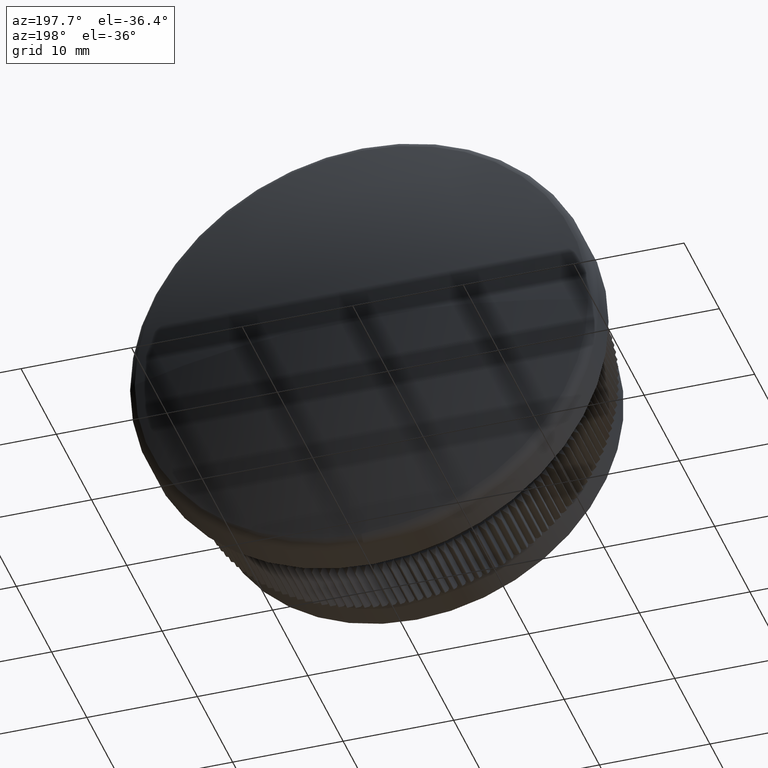
[diagram: clean part render]
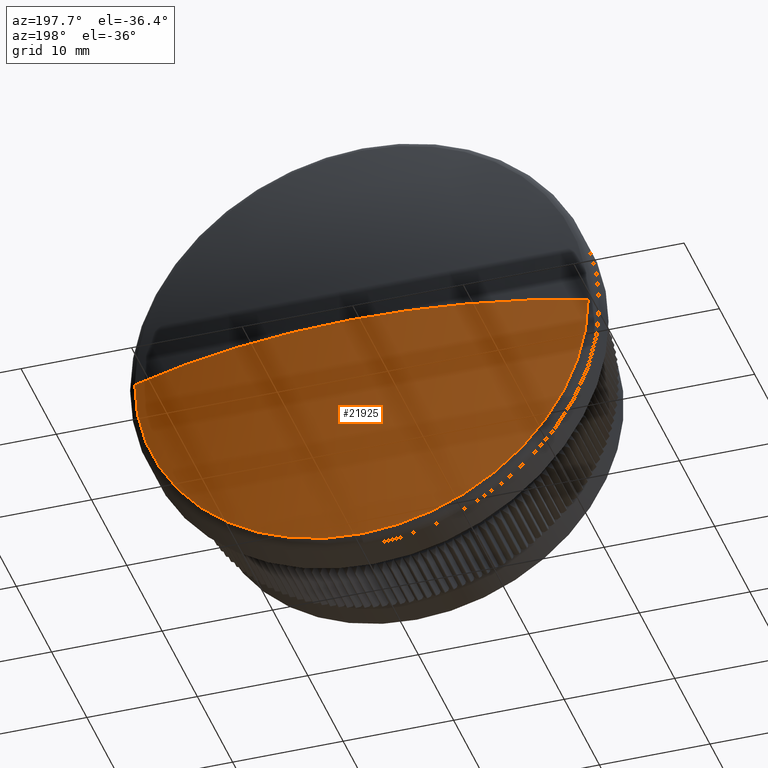
[diagram: same view with one face highlighted and labeled with its STEP entity id]
A machine part, auxiliary view. The second image highlights one B-rep face of the part: STEP entity #21925.
In plain terms, the highlighted spherical surface has radius 64.2222 mm.
Its self-contained STEP definition (entity closure, byte-faithful):
#74 = CARTESIAN_POINT ( 'NONE',  ( 0.0000000000000000000, 16.13370289891058500, 0.0000000000000000000 ) ) ;
#437 = SPHERICAL_SURFACE ( 'NONE', #12327, 64.22222222222215700 ) ;
#1376 = AXIS2_PLACEMENT_3D ( 'NONE', #20008, #5794, #9577 ) ;
#1455 = DIRECTION ( 'NONE',  ( 0.0000000000000000000, 0.0000000000000000000, -1.000000000000000000 ) ) ;
#2058 = ORIENTED_EDGE ( 'NONE', *, *, #12226, .T. ) ;
#2474 = DIRECTION ( 'NONE',  ( 1.000000000000000000, 0.0000000000000000000, 0.0000000000000000000 ) ) ;
#5794 = DIRECTION ( 'NONE',  ( 1.224646799147353200E-016, -0.0000000000000000000, 1.000000000000000000 ) ) ;
#5826 = VERTEX_POINT ( 'NONE', #18334 ) ;
#6579 = ORIENTED_EDGE ( 'NONE', *, *, #8845, .T. ) ;
#7765 = EDGE_CURVE ( 'NONE', #44792, #13353, #19851, .T. ) ;
#8845 = EDGE_CURVE ( 'NONE', #13353, #5826, #42479, .T. ) ;
#8897 = EDGE_LOOP ( 'NONE', ( #12791, #2058, #43405, #6579 ) ) ;
#9577 = DIRECTION ( 'NONE',  ( 1.000000000000000000, 0.0000000000000000000, -1.224646799147353200E-016 ) ) ;
#12226 = EDGE_CURVE ( 'NONE', #40151, #44792, #36865, .T. ) ;
#12327 = AXIS2_PLACEMENT_3D ( 'NONE', #16682, #26981, #2474 ) ;
#12791 = ORIENTED_EDGE ( 'NONE', *, *, #16574, .F. ) ;
#13346 = CARTESIAN_POINT ( 'NONE',  ( 0.0000000000000000000, 16.13370289891058500, 0.0000000000000000000 ) ) ;
#13353 = VERTEX_POINT ( 'NONE', #22797 ) ;
#13995 = DIRECTION ( 'NONE',  ( 0.0000000000000000000, 0.0000000000000000000, -1.000000000000000000 ) ) ;
#16574 = EDGE_CURVE ( 'NONE', #40151, #5826, #25841, .T. ) ;
#16682 = CARTESIAN_POINT ( 'NONE',  ( 0.0000000000000000000, -44.72222222222214300, 0.0000000000000000000 ) ) ;
#18334 = CARTESIAN_POINT ( 'NONE',  ( -20.51950790861158000, 16.13370289891058100, 2.512914968035997800E-015 ) ) ;
#19851 = CIRCLE ( 'NONE', #24568, 20.51950790861159700 ) ;
#20008 = CARTESIAN_POINT ( 'NONE',  ( 0.0000000000000000000, -44.72222222222214300, 0.0000000000000000000 ) ) ;
#20261 = CARTESIAN_POINT ( 'NONE',  ( 20.51950790861158000, 16.13370289891058100, 0.0000000000000000000 ) ) ;
#21925 = ADVANCED_FACE ( 'NONE', ( #30203 ), #437, .T. ) ;
#22797 = CARTESIAN_POINT ( 'NONE',  ( 0.0000000000000000000, 16.13370289891058500, -20.51950790861159700 ) ) ;
#22948 = AXIS2_PLACEMENT_3D ( 'NONE', #32012, #1455, #38919 ) ;
#24568 = AXIS2_PLACEMENT_3D ( 'NONE', #74, #31094, #13995 ) ;
#25841 = CIRCLE ( 'NONE', #1376, 64.22222222222215700 ) ;
#26981 = DIRECTION ( 'NONE',  ( 0.0000000000000000000, 0.0000000000000000000, 1.000000000000000000 ) ) ;
#27394 = DIRECTION ( 'NONE',  ( 0.0000000000000000000, 0.0000000000000000000, -1.000000000000000000 ) ) ;
#27546 = DIRECTION ( 'NONE',  ( 0.0000000000000000000, 1.000000000000000000, 0.0000000000000000000 ) ) ;
#30203 = FACE_OUTER_BOUND ( 'NONE', #8897, .T. ) ;
#31094 = DIRECTION ( 'NONE',  ( 0.0000000000000000000, 1.000000000000000000, 0.0000000000000000000 ) ) ;
#32012 = CARTESIAN_POINT ( 'NONE',  ( 0.0000000000000000000, -44.72222222222214300, 0.0000000000000000000 ) ) ;
#36865 = CIRCLE ( 'NONE', #22948, 64.22222222222215700 ) ;
#37349 = AXIS2_PLACEMENT_3D ( 'NONE', #13346, #27546, #27394 ) ;
#38919 = DIRECTION ( 'NONE',  ( -1.000000000000000000, 0.0000000000000000000, 0.0000000000000000000 ) ) ;
#39053 = CARTESIAN_POINT ( 'NONE',  ( 3.932476943928719100E-015, 19.50000000000001100, 0.0000000000000000000 ) ) ;
#40151 = VERTEX_POINT ( 'NONE', #39053 ) ;
#42479 = CIRCLE ( 'NONE', #37349, 20.51950790861159700 ) ;
#43405 = ORIENTED_EDGE ( 'NONE', *, *, #7765, .T. ) ;
#44792 = VERTEX_POINT ( 'NONE', #20261 ) ;